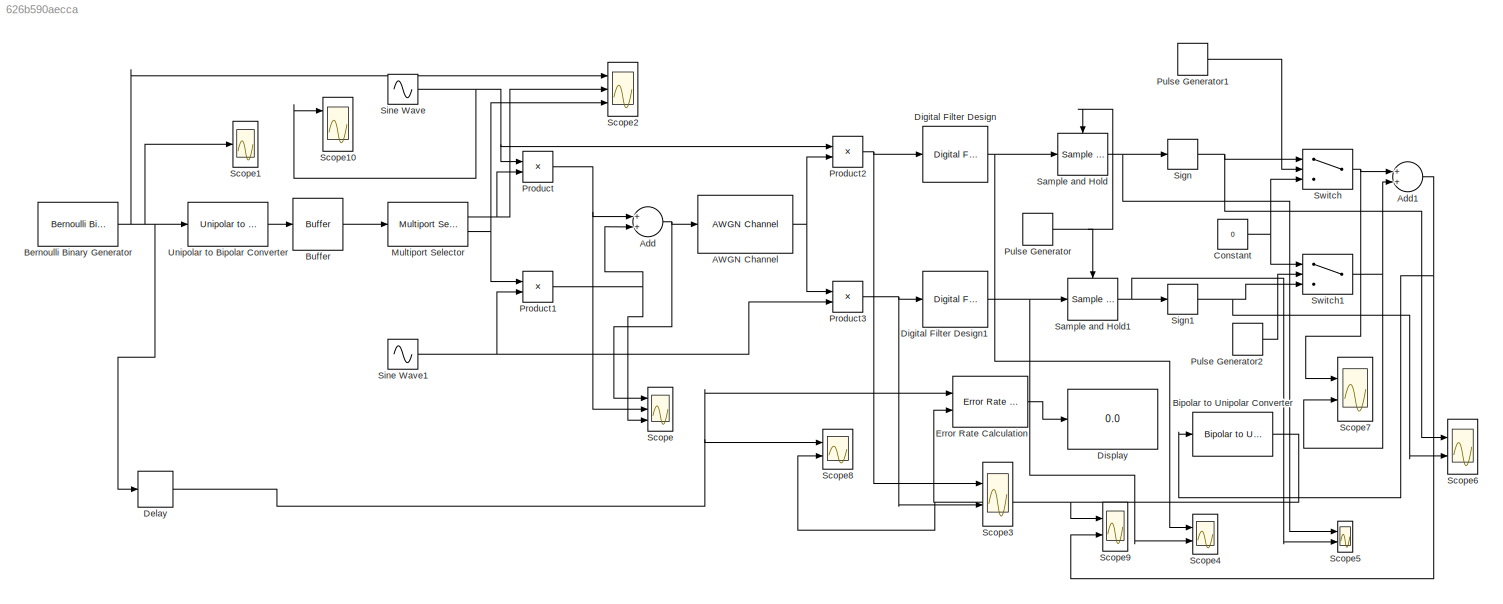
MODEL slx_626b590aecca
KIND model
CONFIG AbsTol = auto
CONFIG FixedStep = auto
CONFIG MaxStep = auto
CONFIG MinStep = auto
CONFIG RelTol = 1e-3
CONFIG SampleTimeConstraint = Unconstrained
CONFIG Solver = VariableStepAuto
CONFIG SolverMode = Auto
CONFIG SolverName = VariableStepAuto
CONFIG StartTime = 0.0
CONFIG StopTime = 1000
BLOCK [Reference] AWGN Channel  REF=commchan3/AWGN
Channel
  Ports = [1, 1]
  SourceBlock = commchan3/AWGN\nChannel
  SourceType = AWGN Channel
  UserDataPersistent = on
BLOCK [Sum] Add
  InputSameDT = off
  OutDataTypeStr = Inherit: Inherit via internal rule
  Ports = [2, 1]
  SaturateOnIntegerOverflow = off
BLOCK [Sum] Add1
  InputSameDT = off
  OutDataTypeStr = Inherit: Inherit via internal rule
  Ports = [2, 1]
  SaturateOnIntegerOverflow = off
BLOCK [Reference] Bernoulli Binary Generator  REF=commrandsrc3/Bernoulli Binary
Generator
  Ports = [0, 1]
  SourceBlock = commrandsrc3/Bernoulli Binary\nGenerator
  SourceType = Bernoulli Binary Generator
BLOCK [Reference] Bipolar to Unipolar Converter  REF=commutil2/Bipolar to
Unipolar
Converter
  Ports = [1, 1]
  SourceBlock = commutil2/Bipolar to\nUnipolar\nConverter
  SourceType = Bipolar to Unipolar Converter
BLOCK [Buffer] Buffer
  N = 2
  OutputFrames = off
  TreatMby1Signals = One channel
BLOCK [Constant] Constant
  Value = 0
BLOCK [Delay] Delay
  DelayLength = 4
  InputPortMap = u0
  Ports = [1, 1]
BLOCK [Reference] Digital Filter Design  REF=dsparch4/Digital
Filter Design
  Ports = [1, 1]
  SourceBlock = dsparch4/Digital\nFilter Design
  SourceType = Digital Filter Design
  UserDataPersistent = on
BLOCK [Reference] Digital Filter Design1  REF=dsparch4/Digital
Filter Design
  Ports = [1, 1]
  SourceBlock = dsparch4/Digital\nFilter Design
  SourceType = Digital Filter Design
  UserDataPersistent = on
BLOCK [Display] Display
  Decimation = 1
  Ports = [1]
BLOCK [Reference] Error Rate Calculation  REF=commsink2/Error Rate
Calculation
  Ports = [2, 1]
  SourceBlock = commsink2/Error Rate\nCalculation
  SourceType = Error Rate Calculation
BLOCK [Reference] Multiport Selector  REF=dspindex/Multiport
Selector
  Ports = [1, 2]
  SourceBlock = dspindex/Multiport\nSelector
  SourceType = Multiport Selector
BLOCK [Product] Product
  InputSameDT = off
  OutDataTypeStr = Inherit: Inherit via internal rule
  Ports = [2, 1]
  RndMeth = Floor
  SaturateOnIntegerOverflow = off
BLOCK [Product] Product1
  InputSameDT = off
  OutDataTypeStr = Inherit: Inherit via internal rule
  Ports = [2, 1]
  RndMeth = Floor
  SaturateOnIntegerOverflow = off
BLOCK [Product] Product2
  InputSameDT = off
  OutDataTypeStr = Inherit: Inherit via internal rule
  Ports = [2, 1]
  RndMeth = Floor
  SaturateOnIntegerOverflow = off
BLOCK [Product] Product3
  InputSameDT = off
  OutDataTypeStr = Inherit: Inherit via internal rule
  Ports = [2, 1]
  RndMeth = Floor
  SaturateOnIntegerOverflow = off
BLOCK [DiscretePulseGenerator] Pulse Generator
  Ports = [0, 1]
  SampleTime = 0.01
BLOCK [DiscretePulseGenerator] Pulse Generator1
  Ports = [0, 1]
  SampleTime = 0.01
BLOCK [DiscretePulseGenerator] Pulse Generator2
  Ports = [0, 1]
  SampleTime = 0.01
BLOCK [Reference] Sample and Hold  REF=dspsigops/Sample
and Hold
  Ports = [1, 1, 0, 1]
  SourceBlock = dspsigops/Sample\nand Hold
  SourceType = Sample and Hold
BLOCK [Reference] Sample and Hold1  REF=dspsigops/Sample
and Hold
  Ports = [1, 1, 0, 1]
  SourceBlock = dspsigops/Sample\nand Hold
  SourceType = Sample and Hold
BLOCK [Scope] Scope
  NumInputPorts = 3
  Ports = [3]
  ScopeSpecificationString = Simulink.scopes.TimeScopeBlockCfg('CurrentConfiguration', extmgr.ConfigurationSet(extmgr.Configuration('Core','General UI',true),extmgr.Configuration('Core','Source UI',true),extmgr.Configuration('Sources','WiredSimulink',true),extmgr.Configuration('Visuals','Time Domain',true,'SerializedDisplays',{struct('MinYLimReal','-3.49201','MaxYLimReal','3.49201','YLabelReal','','MinYLimMag','0.00000','MaxY...<+2686ch>
BLOCK [Scope] Scope1
  Ports = [1]
  ScopeSpecificationString = Simulink.scopes.TimeScopeBlockCfg('CurrentConfiguration', extmgr.ConfigurationSet(extmgr.Configuration('Core','General UI',true),extmgr.Configuration('Core','Source UI',true),extmgr.Configuration('Sources','WiredSimulink',true,'DataLoggingVariableName','ScopeData1'),extmgr.Configuration('Visuals','Time Domain',true,'SerializedDisplays',{struct('MinYLimReal','-0.125','MaxYLimReal','1.125','YLabelRe...<+1497ch>
BLOCK [Scope] Scope10
  NumInputPorts = 3
  Ports = [3]
  ScopeSpecificationString = Simulink.scopes.TimeScopeBlockCfg('CurrentConfiguration', extmgr.ConfigurationSet(extmgr.Configuration('Core','General UI',true),extmgr.Configuration('Core','Source UI',true),extmgr.Configuration('Sources','WiredSimulink',true,'DataLoggingVariableName','ScopeData10'),extmgr.Configuration('Visuals','Time Domain',true,'SerializedDisplays',{struct('MinYLimReal','-2.5','MaxYLimReal','2.5','YLabelReal'...<+2694ch>
BLOCK [Scope] Scope2
  NumInputPorts = 3
  Ports = [3]
  ScopeSpecificationString = Simulink.scopes.TimeScopeBlockCfg('CurrentConfiguration', extmgr.ConfigurationSet(extmgr.Configuration('Core','General UI',true),extmgr.Configuration('Core','Source UI',true),extmgr.Configuration('Sources','WiredSimulink',true,'DataLoggingVariableName','ScopeData2'),extmgr.Configuration('Visuals','Time Domain',true,'SerializedDisplays',{struct('MinYLimReal','-0.125','MaxYLimReal','1.125','YLabelRe...<+2771ch>
BLOCK [Scope] Scope3
  NumInputPorts = 2
  Ports = [2]
  ScopeSpecificationString = Simulink.scopes.TimeScopeBlockCfg('CurrentConfiguration', extmgr.ConfigurationSet(extmgr.Configuration('Core','General UI',true),extmgr.Configuration('Core','Source UI',true),extmgr.Configuration('Sources','WiredSimulink',true,'DataLoggingVariableName','ScopeData3'),extmgr.Configuration('Visuals','Time Domain',true,'SerializedDisplays',{struct('MinYLimReal','-6.67628','MaxYLimReal','6.66817','YLab...<+2039ch>
BLOCK [Scope] Scope4
  NumInputPorts = 2
  Ports = [2]
  ScopeSpecificationString = Simulink.scopes.TimeScopeBlockCfg('CurrentConfiguration', extmgr.ConfigurationSet(extmgr.Configuration('Core','General UI',true),extmgr.Configuration('Core','Source UI',true),extmgr.Configuration('Sources','WiredSimulink',true,'DataLoggingVariableName','ScopeData4'),extmgr.Configuration('Visuals','Time Domain',true,'SerializedDisplays',{struct('MinYLimReal','-2.98442','MaxYLimReal','2.98005','YLab...<+4816ch>
BLOCK [Scope] Scope5
  NumInputPorts = 2
  Ports = [2]
  ScopeSpecificationString = Simulink.scopes.TimeScopeBlockCfg('CurrentConfiguration', extmgr.ConfigurationSet(extmgr.Configuration('Core','General UI',true),extmgr.Configuration('Core','Source UI',true),extmgr.Configuration('Sources','WiredSimulink',true,'DataLoggingVariableName','ScopeData5'),extmgr.Configuration('Visuals','Time Domain',true,'SerializedDisplays',{struct('MinYLimReal','-2.8333','MaxYLimReal','2.82228','YLabe...<+2007ch>
BLOCK [Scope] Scope6
  NumInputPorts = 2
  Ports = [2]
  ScopeSpecificationString = Simulink.scopes.TimeScopeBlockCfg('CurrentConfiguration', extmgr.ConfigurationSet(extmgr.Configuration('Core','General UI',true),extmgr.Configuration('Core','Source UI',true),extmgr.Configuration('Sources','WiredSimulink',true,'DataLoggingVariableName','ScopeData6'),extmgr.Configuration('Visuals','Time Domain',true,'SerializedDisplays',{struct('MinYLimReal','-1.25','MaxYLimReal','1.25','YLabelReal...<+4812ch>
BLOCK [Scope] Scope7
  NumInputPorts = 2
  Ports = [2]
  ScopeSpecificationString = Simulink.scopes.TimeScopeBlockCfg('CurrentConfiguration', extmgr.ConfigurationSet(extmgr.Configuration('Core','General UI',true),extmgr.Configuration('Core','Source UI',true),extmgr.Configuration('Sources','WiredSimulink',true,'DataLoggingVariableName','ScopeData7'),extmgr.Configuration('Visuals','Time Domain',true,'SerializedDisplays',{struct('MinYLimReal','-1.25','MaxYLimReal','1.25','YLabelReal...<+1976ch>
BLOCK [Scope] Scope8
  NumInputPorts = 2
  Ports = [2]
  ScopeSpecificationString = Simulink.scopes.TimeScopeBlockCfg('CurrentConfiguration', extmgr.ConfigurationSet(extmgr.Configuration('Core','General UI',true),extmgr.Configuration('Core','Source UI',true),extmgr.Configuration('Sources','WiredSimulink',true,'DataLoggingVariableName','ScopeData8'),extmgr.Configuration('Visuals','Time Domain',true,'SerializedDisplays',{struct('MinYLimReal','-0.125','MaxYLimReal','1.125','YLabelRe...<+2047ch>
BLOCK [Scope] Scope9
  NumInputPorts = 2
  Ports = [2]
  ScopeSpecificationString = Simulink.scopes.TimeScopeBlockCfg('CurrentConfiguration', extmgr.ConfigurationSet(extmgr.Configuration('Core','General UI',true),extmgr.Configuration('Core','Source UI',true),extmgr.Configuration('Sources','WiredSimulink',true,'DataLoggingVariableName','ScopeData9'),extmgr.Configuration('Visuals','Time Domain',true,'SerializedDisplays',{struct('MinYLimReal','-0.125','MaxYLimReal','1.125','YLabelRe...<+4840ch>
BLOCK [Signum] Sign
BLOCK [Signum] Sign1
BLOCK [Sin] Sine Wave
  Amplitude = 2
  Frequency = 500*2*pi
  Ports = [0, 1]
  SampleTime = 1/10000
BLOCK [Sin] Sine Wave1
  Amplitude = 2
  Frequency = 500*2*pi
  Phase = pi/2
  Ports = [0, 1]
  SampleTime = 1/10000
BLOCK [Switch] Switch
  Criteria = u2 > Threshold
  InputSameDT = off
  SaturateOnIntegerOverflow = off
BLOCK [Switch] Switch1
  Criteria = u2 > Threshold
  InputSameDT = off
  SaturateOnIntegerOverflow = off
BLOCK [Reference] Unipolar to Bipolar Converter  REF=commutil2/Unipolar to
Bipolar
Converter
  Ports = [1, 1]
  SourceBlock = commutil2/Unipolar to\nBipolar\nConverter
  SourceType = Unipolar to Bipolar Converter
NET AWGN Channel:1 -> Product2:2, Product3:1
NET Add1:1 -> Bipolar to Unipolar Converter:1, Scope9:2
NET Add:1 -> AWGN Channel:1, Scope:1
NET Bernoulli Binary Generator:1 -> Delay:1, Scope1:1, Scope2:1, Unipolar to Bipolar Converter:1
NET Bipolar to Unipolar Converter:1 -> Error Rate Calculation:2, Scope8:2, Scope9:1
LINE Buffer:1 -> Multiport Selector:1
NET Constant:1 -> Switch1:1, Switch:3
NET Delay:1 -> Error Rate Calculation:1, Scope8:1
NET Digital Filter Design1:1 -> Sample and Hold1:1, Scope4:2
NET Digital Filter Design:1 -> Sample and Hold:1, Scope4:1
LINE Error Rate Calculation:1 -> Display:1
NET Multiport Selector:1 -> Product:2, Scope2:2
NET Multiport Selector:2 -> Product1:1, Scope2:3
NET Product1:1 -> Add:2, Scope:3
NET Product2:1 -> Digital Filter Design:1, Scope3:1
NET Product3:1 -> Digital Filter Design1:1, Scope3:2
NET Product:1 -> Add:1, Scope:2
LINE Pulse Generator1:1 -> Switch:2
LINE Pulse Generator2:1 -> Switch1:2
NET Pulse Generator:1 -> Sample and Hold1:trigger, Sample and Hold:trigger
NET Sample and Hold1:1 -> Scope5:2, Sign1:1
NET Sample and Hold:1 -> Scope5:1, Sign:1
NET Sign1:1 -> Scope6:2, Switch1:3
NET Sign:1 -> Scope6:1, Switch:1
NET Sine Wave1:1 -> Product1:2, Product3:2
NET Sine Wave:1 -> Product2:1, Product:1, Scope10:1
NET Switch1:1 -> Add1:2, Scope7:2
NET Switch:1 -> Add1:1, Scope7:1
LINE Unipolar to Bipolar Converter:1 -> Buffer:1
note: NET lines group one-source signal fan-out (src -> all destinations, sorted); 1:1 wires keep LINE
